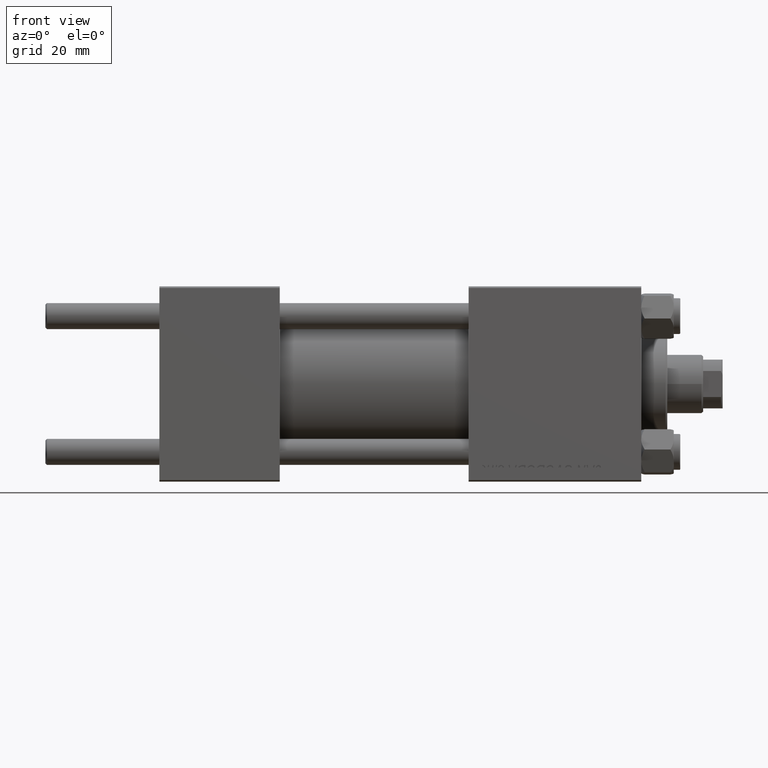
[diagram: clean part render]
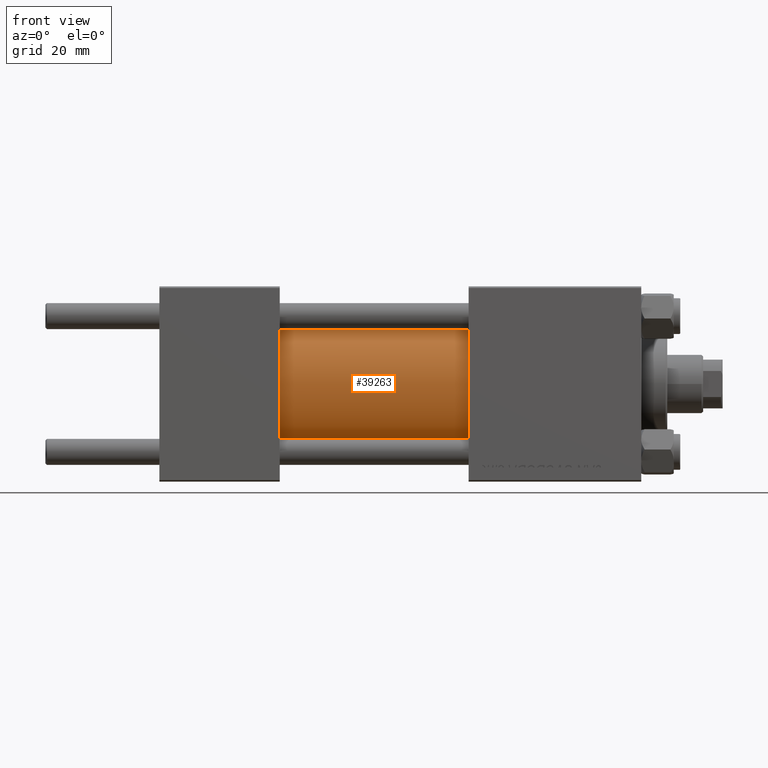
[diagram: same view with one face highlighted and labeled with its STEP entity id]
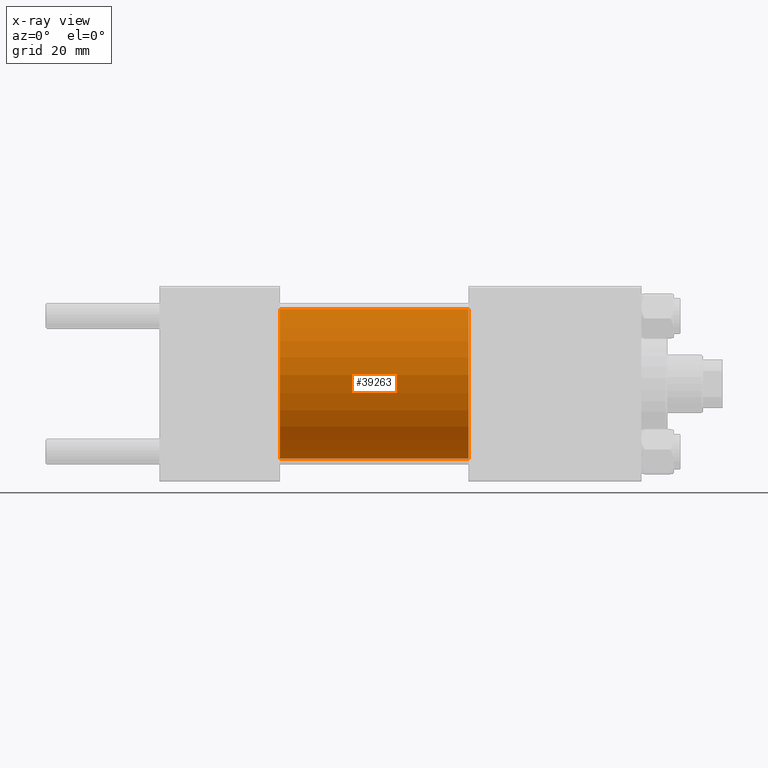
[diagram: x-ray of the same camera — body ghosted, the highlighted face saturated]
A machine part, front view. The second image highlights one B-rep face of the part: STEP entity #39263.
The next image is the same camera in x-ray: the body ghosted, the highlighted face saturated — about 0% of this face is hidden behind the body in this view.
In plain terms, the highlighted cylindrical surface (partial cylindrical patch) has radius 23 mm, axis along (-1, -0, -0).
Its self-contained STEP definition (entity closure, byte-faithful):
#362 = ORIENTED_EDGE ( 'NONE', *, *, #4177, .T. ) ;
#1410 = CARTESIAN_POINT ( 'NONE',  ( 95.00000000000000000, 0.000000000000000000, 23.00000000000000000 ) ) ;
#1581 = FACE_OUTER_BOUND ( 'NONE', #16343, .T. ) ;
#3327 = DIRECTION ( 'NONE',  ( 0.000000000000000000, 0.000000000000000000, 1.000000000000000000 ) ) ;
#4076 = DIRECTION ( 'NONE',  ( 1.000000000000000000, -0.000000000000000000, 0.000000000000000000 ) ) ;
#4177 = EDGE_CURVE ( 'NONE', #47789, #5843, #10197, .T. ) ;
#5440 = ORIENTED_EDGE ( 'NONE', *, *, #45691, .F. ) ;
#5843 = VERTEX_POINT ( 'NONE', #43242 ) ;
#5895 = ORIENTED_EDGE ( 'NONE', *, *, #20248, .F. ) ;
#7864 = VECTOR ( 'NONE', #12751, 1000.000000000000000 ) ;
#8632 = EDGE_CURVE ( 'NONE', #16520, #47789, #20667, .T. ) ;
#10197 = CIRCLE ( 'NONE', #17528, 23.00000000000000000 ) ;
#12751 = DIRECTION ( 'NONE',  ( -1.000000000000000000, -0.000000000000000000, -0.000000000000000000 ) ) ;
#12978 = DIRECTION ( 'NONE',  ( 0.000000000000000000, 0.000000000000000000, 1.000000000000000000 ) ) ;
#16343 = EDGE_LOOP ( 'NONE', ( #5895, #5440, #30742, #362 ) ) ;
#16520 = VERTEX_POINT ( 'NONE', #42475 ) ;
#16869 = DIRECTION ( 'NONE',  ( -1.000000000000000000, -0.000000000000000000, -0.000000000000000000 ) ) ;
#17043 = DIRECTION ( 'NONE',  ( -1.000000000000000000, -0.000000000000000000, -0.000000000000000000 ) ) ;
#17528 = AXIS2_PLACEMENT_3D ( 'NONE', #38503, #4076, #3327 ) ;
#18457 = VECTOR ( 'NONE', #16869, 1000.000000000000000 ) ;
#19339 = VERTEX_POINT ( 'NONE', #32591 ) ;
#19759 = CIRCLE ( 'NONE', #43175, 23.00000000000000000 ) ;
#20248 = EDGE_CURVE ( 'NONE', #19339, #5843, #31489, .T. ) ;
#20667 = LINE ( 'NONE', #1410, #18457 ) ;
#24412 = CARTESIAN_POINT ( 'NONE',  ( 95.00000000000000000, 2.816687638038911957E-15, -23.00000000000000000 ) ) ;
#25132 = CYLINDRICAL_SURFACE ( 'NONE', #27747, 23.00000000000000000 ) ;
#25507 = CARTESIAN_POINT ( 'NONE',  ( 37.00000000000000000, 0.000000000000000000, 23.00000000000000000 ) ) ;
#27747 = AXIS2_PLACEMENT_3D ( 'NONE', #40533, #17043, #12978 ) ;
#30742 = ORIENTED_EDGE ( 'NONE', *, *, #8632, .T. ) ;
#31489 = LINE ( 'NONE', #24412, #7864 ) ;
#32591 = CARTESIAN_POINT ( 'NONE',  ( 95.00000000000000000, 2.816687638038911957E-15, -23.00000000000000000 ) ) ;
#34680 = CARTESIAN_POINT ( 'NONE',  ( 95.00000000000000000, 0.000000000000000000, 0.000000000000000000 ) ) ;
#38503 = CARTESIAN_POINT ( 'NONE',  ( 37.00000000000000000, 0.000000000000000000, 0.000000000000000000 ) ) ;
#39263 = ADVANCED_FACE ( 'NONE', ( #1581 ), #25132, .T. ) ;
#40533 = CARTESIAN_POINT ( 'NONE',  ( 95.00000000000000000, 0.000000000000000000, 0.000000000000000000 ) ) ;
#42475 = CARTESIAN_POINT ( 'NONE',  ( 95.00000000000000000, 0.000000000000000000, 23.00000000000000000 ) ) ;
#43000 = DIRECTION ( 'NONE',  ( 0.000000000000000000, 0.000000000000000000, -1.000000000000000000 ) ) ;
#43175 = AXIS2_PLACEMENT_3D ( 'NONE', #34680, #46553, #43000 ) ;
#43242 = CARTESIAN_POINT ( 'NONE',  ( 37.00000000000000000, 2.816687638038911957E-15, -23.00000000000000000 ) ) ;
#45691 = EDGE_CURVE ( 'NONE', #16520, #19339, #19759, .T. ) ;
#46553 = DIRECTION ( 'NONE',  ( 1.000000000000000000, 0.000000000000000000, 0.000000000000000000 ) ) ;
#47789 = VERTEX_POINT ( 'NONE', #25507 ) ;